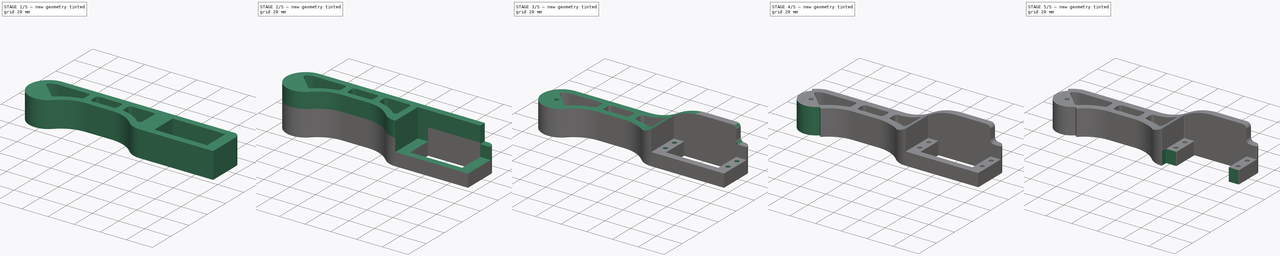
[diagram: build sequence overview — one tinted view per stage of 5, left to right]
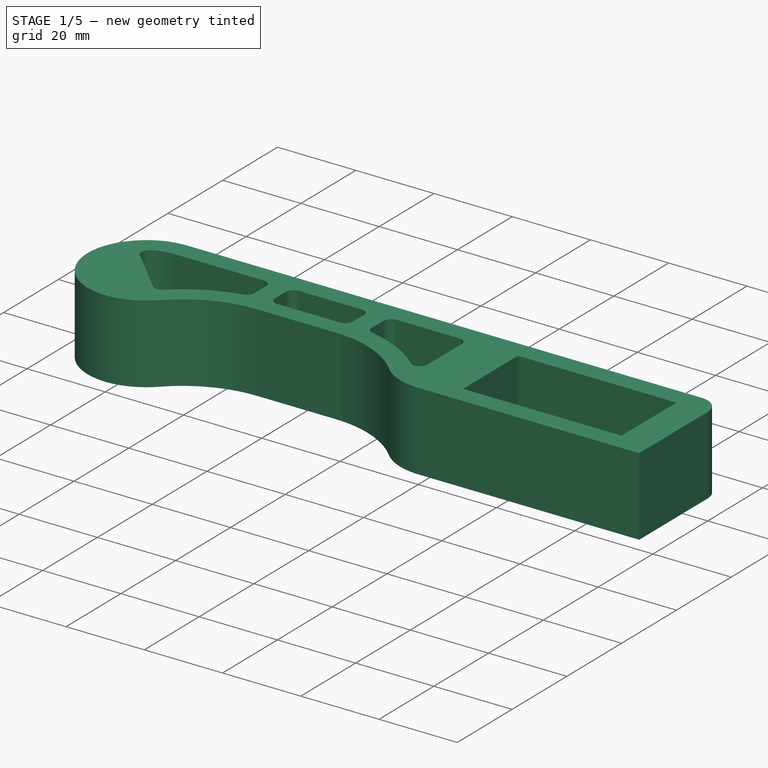
[diagram: stage 1 of 5 — iso view after this stage's code; geometry added in this stage tinted green]
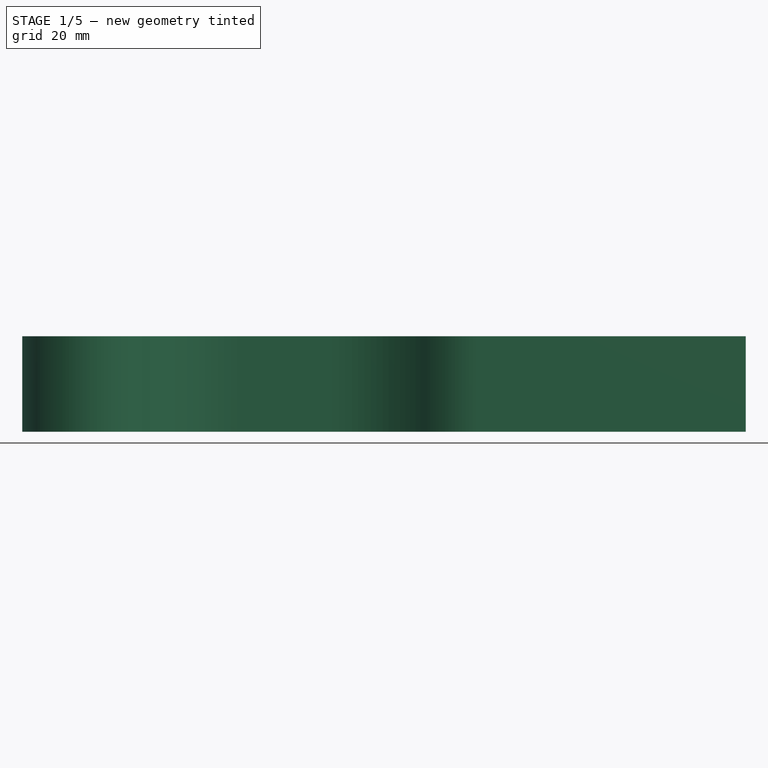
[diagram: stage 1 of 5 — front view after this stage's code; geometry added in this stage tinted green]
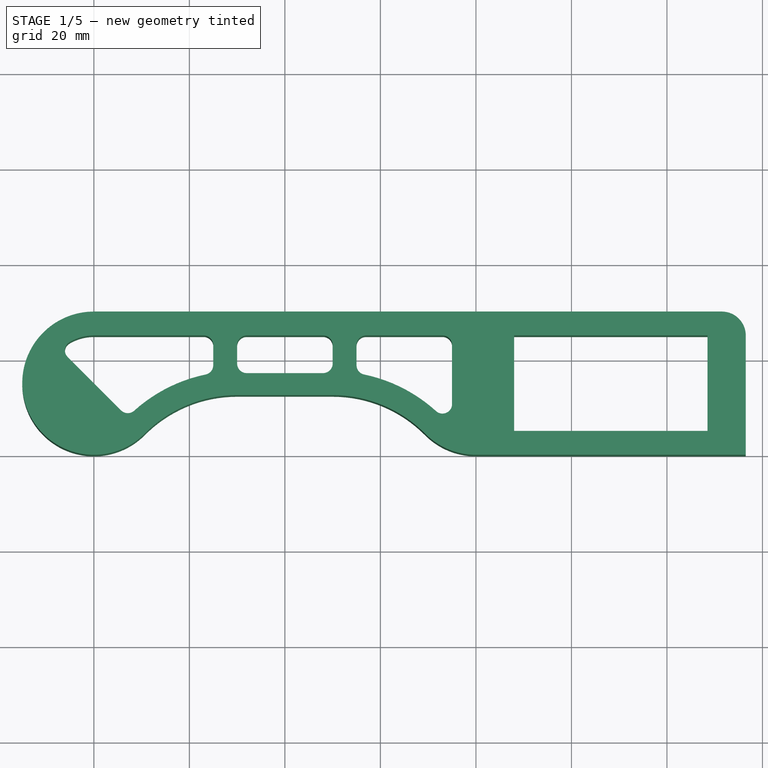
[diagram: stage 1 of 5 — top view after this stage's code; geometry added in this stage tinted green]
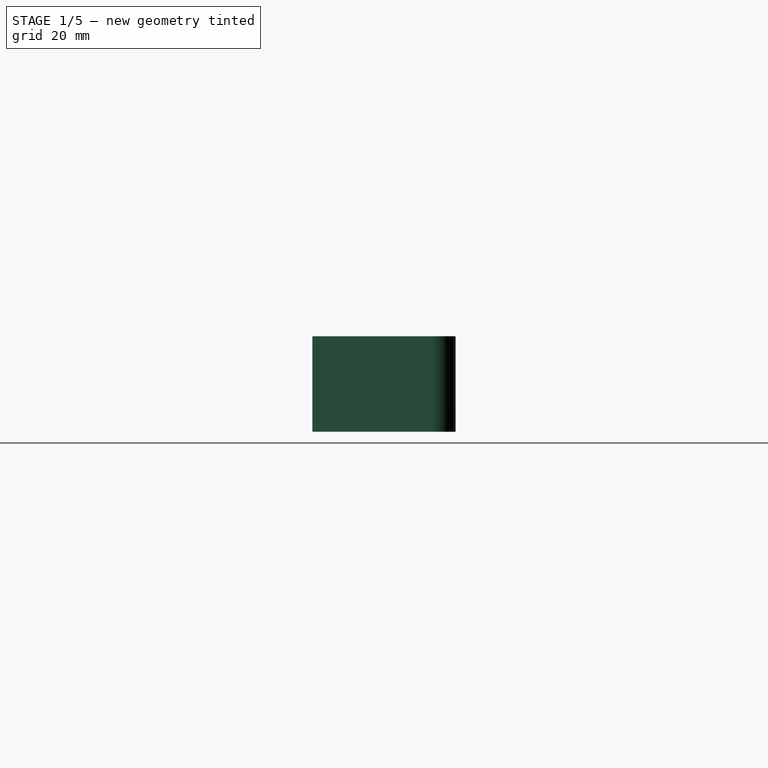
[diagram: stage 1 of 5 — right view after this stage's code; geometry added in this stage tinted green]
FCSTD DOCUMENT  (FreeCAD 0.18R4 (GitTag))
Label: Wrist
License: CreativeCommons Attribution-NonCommercial
LicenseURL: http://creativecommons.org/licenses/by-nc/4.0/
objects: Sketcher::SketchObject×10, PartDesign::Pocket×9, PartDesign::Fillet×3, PartDesign::Pad×2, PartDesign::Chamfer×1, PartDesign::Body×1
note: 37 computed .brp shape members not serialized (recipe doc carries the construction recipe); baked Part::Feature solids carry a one-line shape summary decoded from their .brp

FEATURE [Sketcher::SketchObject] Sketch116
  MapMode = 5
  Support = -> [XY_Plane009]
  sketch-geometry (9):
    g0: LineSegment StartX=-2.8e-15 StartY=0 StartZ=0 EndX=56.5 EndY=0 EndZ=0
    g1: LineSegment StartX=56.5 StartY=0 StartZ=0 EndX=56.5 EndY=25 EndZ=0
    g2: LineSegment StartX=51.5 StartY=30 StartZ=0 EndX=-80 EndY=30 EndZ=0
    g3: ArcOfCircle CenterX=-80 CenterY=15 CenterZ=0 NormalX=0 NormalY=0 NormalZ=1 AngleXU=0 Radius=15 StartAngle=1.5708 EndAngle=5.50197
    g4: ArcOfCircle CenterX=-50 CenterY=-14.75 CenterZ=0 NormalX=0 NormalY=0 NormalZ=1 AngleXU=0 Radius=27.25 StartAngle=1.5708 EndAngle=2.36038
    g5: ArcOfCircle CenterX=-30 CenterY=-14.75 CenterZ=0 NormalX=0 NormalY=0 NormalZ=1 AngleXU=0 Radius=27.25 StartAngle=0.781214 EndAngle=1.5708
    g6: ArcOfCircle CenterX=0 CenterY=15 CenterZ=0 NormalX=0 NormalY=0 NormalZ=1 AngleXU=0 Radius=15 StartAngle=3.92281 EndAngle=4.71239
    g7: LineSegment StartX=-50 StartY=12.5 StartZ=0 EndX=-30 EndY=12.5 EndZ=0
    g8: ArcOfCircle CenterX=51.5 CenterY=25 CenterZ=0 NormalX=0 NormalY=0 NormalZ=1 AngleXU=0 Radius=5 StartAngle=3e-16 EndAngle=1.5708
  constraints (23):
    c: Coincident(g0,g1)
    c: Horizontal(g0)
    c: Horizontal(g2)
    c: Vertical(g1)
    c: DistanceX(g0,g0) = 56.5
    c: Horizontal(g7)
    c: Radius(g3) = 15
    c: Tangent(g7,g5) = 1.5708
    c: Tangent(g4,g3) = 1.5708
    c: Tangent(g3,g2) = -1.5708
    c: Tangent(g7,g4) = 1.5708
    c: Tangent(g6,g5) = 1.5708
    c: Tangent(g6,g0) = -1.5708
    c: Equal(g3,g6)
    c: Equal(g4,g5)
    c: DistanceY(g0,g5) = 12.5
    c: DistanceX(g2,g0) = 80
    c: DistanceX(g4,g5) = 20
    c: Tangent(g3,g-1)
    c: Tangent(g2,g8) = -1.5708
    c: Tangent(g1,g8) = -1.5708
    c: Radius(g8) = 5
    c: Coincident(g0,g-1)
FEATURE [PartDesign::Pad] Pad021  label="Baseplate"
  Length = 20
  Length2 = 100
  Profile = -> Sketch116
  Type = 0
FEATURE [Sketcher::SketchObject] Sketch117
  ExternalGeometry = -> [Pad021]
  MapMode = 5
  Placement = pos=(0,0,20) rot=(0,0,1;0rad)
  Support = -> [Pad021]
  sketch-geometry (18):
    g0: LineSegment StartX=-87.0711 StartY=22.0711 StartZ=0 EndX=-72.9287 EndY=7.92875 EndZ=0
    g1: LineSegment StartX=-50 StartY=17.1099 StartZ=0 EndX=-30 EndY=17.1099 EndZ=0
    g2: LineSegment StartX=-30 StartY=17.1099 StartZ=0 EndX=-30 EndY=25 EndZ=0
    g3: LineSegment StartX=-30 StartY=25 StartZ=0 EndX=-50 EndY=25 EndZ=0
    g4: LineSegment StartX=-50 StartY=25 StartZ=0 EndX=-50 EndY=17.1099 EndZ=0
    g5: LineSegment StartX=-55 StartY=25 StartZ=0 EndX=-55 EndY=17.1099 EndZ=0
    g6: LineSegment StartX=-55 StartY=25 StartZ=0 EndX=-80 EndY=25 EndZ=0
    g7: LineSegment StartX=-25 StartY=25 StartZ=0 EndX=-25 EndY=17.1099 EndZ=0
    g8: ArcOfCircle CenterX=-80 CenterY=15 CenterZ=0 NormalX=0 NormalY=0 NormalZ=1 AngleXU=0 Radius=10 StartAngle=1.5708 EndAngle=2.35619
    g9: ArcOfCircle CenterX=-50 CenterY=-14.75 CenterZ=0 NormalX=0 NormalY=0 NormalZ=1 AngleXU=0 Radius=32.2499 StartAngle=1.72646 EndAngle=2.36168
    g10: ArcOfCircle CenterX=-30 CenterY=-14.75 CenterZ=0 NormalX=0 NormalY=0 NormalZ=1 AngleXU=0 Radius=32.2499 StartAngle=0.781214 EndAngle=1.41513
    g11: ArcOfCircle CenterX=0 CenterY=15 CenterZ=0 NormalX=0 NormalY=0 NormalZ=1 AngleXU=0 Radius=10.0001 StartAngle=3.92281 EndAngle=4.1888
    g12: LineSegment StartX=-25 StartY=25 StartZ=0 EndX=-5 EndY=25 EndZ=0
    g13: LineSegment StartX=-5 StartY=25 StartZ=0 EndX=-5 EndY=6.33958 EndZ=0
    g14: LineSegment StartX=8 StartY=25 StartZ=0 EndX=48.5 EndY=25 EndZ=0
    g15: LineSegment StartX=48.5 StartY=25 StartZ=0 EndX=48.5 EndY=5 EndZ=0
    g16: LineSegment StartX=48.5 StartY=5 StartZ=0 EndX=8 EndY=5 EndZ=0
    g17: LineSegment StartX=8 StartY=5 StartZ=0 EndX=8 EndY=25 EndZ=0
  constraints (52):
    c: Coincident(g1,g2)
    c: Coincident(g2,g3)
    c: Coincident(g3,g4)
    c: Coincident(g4,g1)
    c: Horizontal(g1)
    c: Horizontal(g3)
    c: Vertical(g2)
    c: Vertical(g4)
    c: Coincident(g6,g5)
    c: Horizontal(g6)
    c: Vertical(g7)
    c: Vertical(g5)
    c: Coincident(g8,g0)
    c: Coincident(g9,g5)
    c: Coincident(g10,g7)
    c: Coincident(g12,g7)
    c: Horizontal(g12)
    c: Tangent(g8,g6) = -1.5708
    c: Horizontal(g5,g3)
    c: Horizontal(g2,g7)
    c: Horizontal(g1,g7)
    c: Horizontal(g5,g1)
    c: Tangent(g11,g10) = 1.5708
    c: Angle(g0) = -0.785398
    c: Radius(g8) = 10
    c: Coincident(g8,g-3)
    c: PointOnObject(g8,g0)
    c: Coincident(g9,g0)
    c: DistanceX(g5,g3) = 5
    c: DistanceX(g2,g7) = 5
    c: DistanceX(g11,g-1) = 5
    c: Coincident(g13,g12)
    c: Coincident(g13,g11)
    c: Vertical(g13)
    c: Coincident(g-4,g9)
    c: Coincident(g10,g-5)
    c: Distance(g0,g-4) = 5
    c: Coincident(g11,g-6)
    c: Vertical(g-4,g1)
    c: Vertical(g-5,g1)
    c: Coincident(g14,g15)
    c: Coincident(g15,g16)
    c: Coincident(g16,g17)
    c: Coincident(g17,g14)
    c: Horizontal(g14)
    c: Horizontal(g16)
    c: Vertical(g15)
    c: Vertical(g17)
    c: DistanceX(g-1,g16) = 8
    c: DistanceY(g-1,g16) = 5
    c: DistanceX(g14,g14) = 40.5
    c: DistanceY(g15,g15) = 20
FEATURE [PartDesign::Pocket] Pocket087  label="Leg and Servo Pockets"
  BaseFeature = -> Pad021
  Length = 20
  Length2 = 100
  Profile = -> Sketch117
  Type = 0
FEATURE [PartDesign::Fillet] Fillet031  label="Smooth Leg Pockets"
  Base = -> Pocket087 [Edge76,Edge72,Edge73,Edge75,Edge69,Edge70,Edge71,Edge68,Edge77,Edge81,Edge79,Edge80]
  BaseFeature = -> Pocket087
  Radius = 2
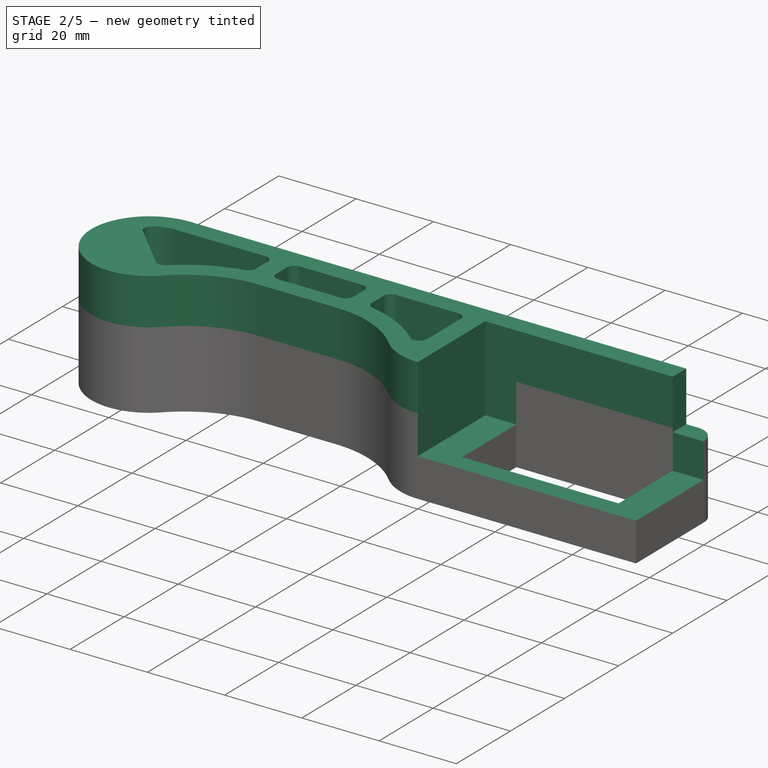
[diagram: stage 2 of 5 — iso view after this stage's code; geometry added in this stage tinted green]
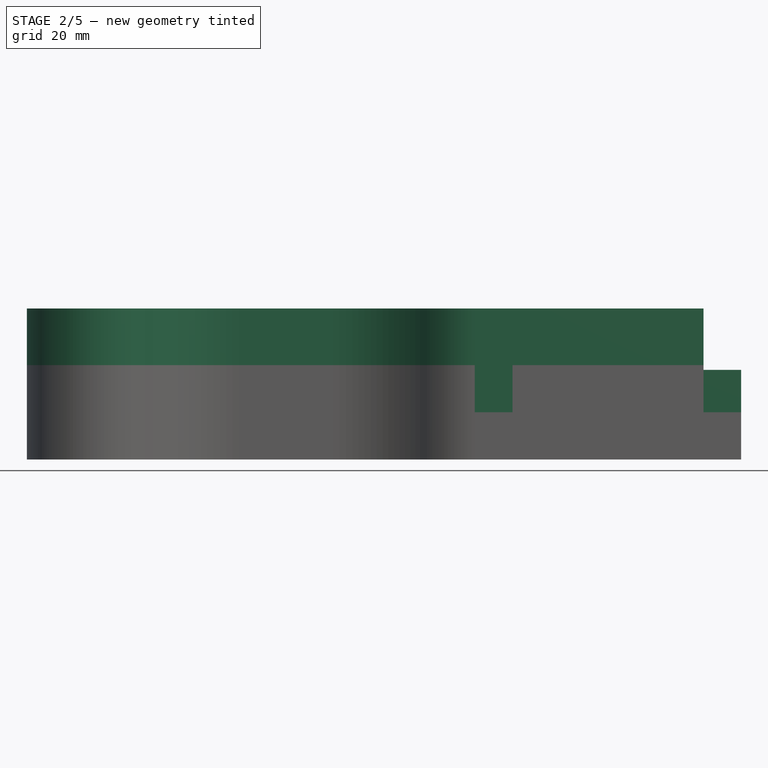
[diagram: stage 2 of 5 — front view after this stage's code; geometry added in this stage tinted green]
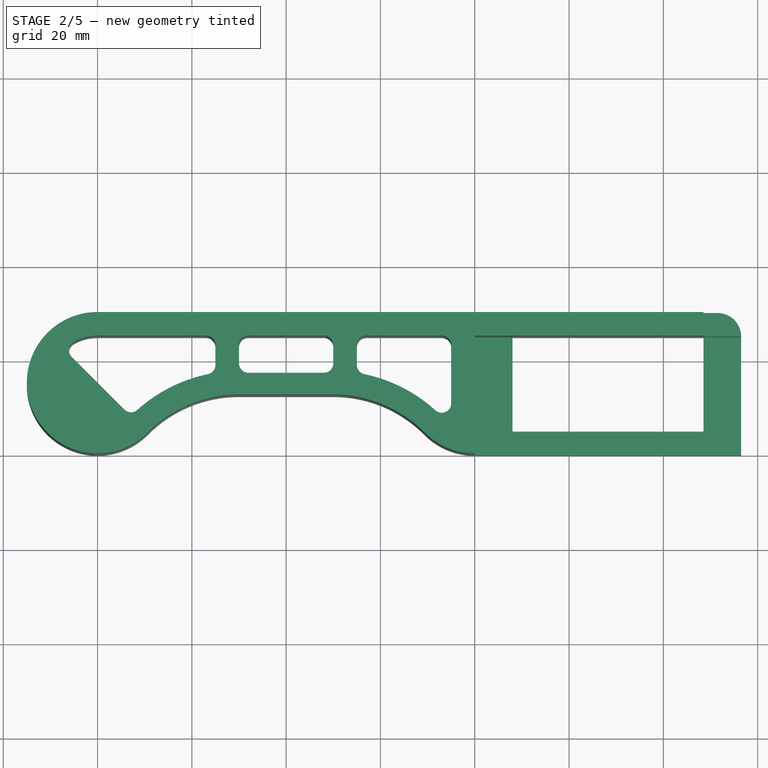
[diagram: stage 2 of 5 — top view after this stage's code; geometry added in this stage tinted green]
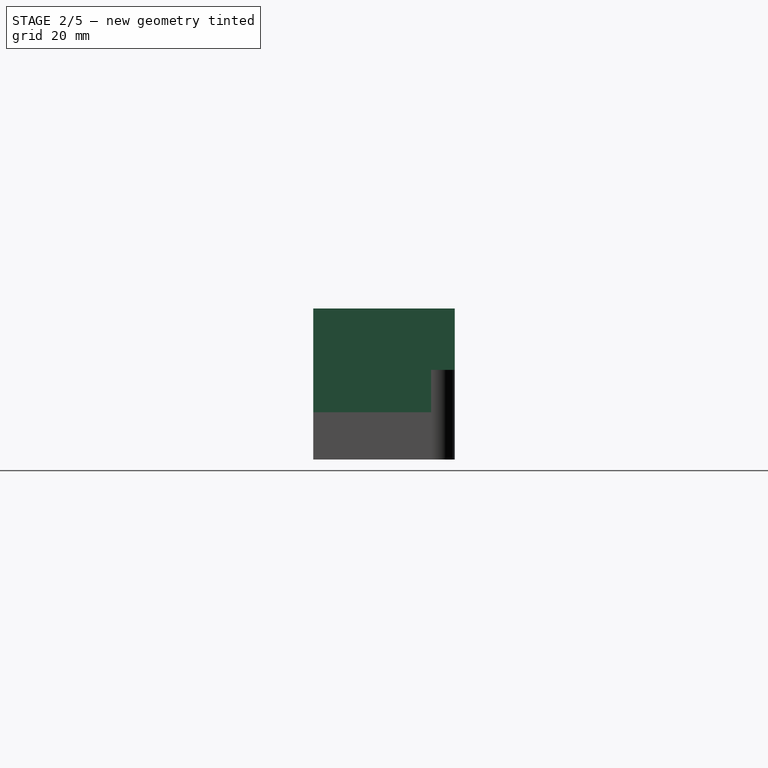
[diagram: stage 2 of 5 — right view after this stage's code; geometry added in this stage tinted green]
FEATURE [Sketcher::SketchObject] Sketch118
  MapMode = 5
  Placement = pos=(0,0,20) rot=(0,0,1;0rad)
  Support = -> [Fillet031]
  sketch-geometry (4):
    g0: LineSegment StartX=0 StartY=0 StartZ=0 EndX=56.5 EndY=0 EndZ=0
    g1: LineSegment StartX=56.5 StartY=0 StartZ=0 EndX=56.5 EndY=25 EndZ=0
    g2: LineSegment StartX=56.5 StartY=25 StartZ=0 EndX=0 EndY=25 EndZ=0
    g3: LineSegment StartX=0 StartY=25 StartZ=0 EndX=0 EndY=0 EndZ=0
  constraints (11):
    c: Coincident(g0,g1)
    c: Coincident(g1,g2)
    c: Coincident(g2,g3)
    c: Coincident(g3,g0)
    c: Horizontal(g0)
    c: Horizontal(g2)
    c: Vertical(g1)
    c: Vertical(g3)
    c: Coincident(g0,g-1)
    c: DistanceY(g3,g3) = 25
    c: DistanceX(g2,g2) = 56.5
FEATURE [PartDesign::Pocket] Pocket088  label="Counterpart Pocket"
  BaseFeature = -> Fillet031
  Length = 10
  Length2 = 100
  Profile = -> Sketch118
  Type = 0
FEATURE [PartDesign::Pad] Pad022  label="Extend Baseplate"
  BaseFeature = -> Pocket088
  Length = 12
  Length2 = 100
  Profile = -> Pocket088 [Face40]
  Type = 0
FEATURE [Sketcher::SketchObject] Sketch119
  MapMode = 5
  Placement = pos=(0,0,32) rot=(0,0,1;0rad)
  Support = -> [Pad022]
  sketch-geometry (4):
    g0: LineSegment StartX=48.5 StartY=25 StartZ=0 EndX=56.5 EndY=25 EndZ=0
    g1: LineSegment StartX=56.5 StartY=25 StartZ=0 EndX=56.5 EndY=30 EndZ=0
    g2: LineSegment StartX=56.5 StartY=30 StartZ=0 EndX=48.5 EndY=30 EndZ=0
    g3: LineSegment StartX=48.5 StartY=30 StartZ=0 EndX=48.5 EndY=25 EndZ=0
  constraints (12):
    c: Coincident(g0,g1)
    c: Coincident(g1,g2)
    c: Coincident(g2,g3)
    c: Coincident(g3,g0)
    c: Horizontal(g0)
    c: Horizontal(g2)
    c: Vertical(g1)
    c: Vertical(g3)
    c: DistanceY(g3,g3) = 5
    c: DistanceY(g-1,g0) = 25
    c: DistanceX(g2,g2) = 8
    c: DistanceX(g-1,g2) = 48.5
FEATURE [PartDesign::Pocket] Pocket089  label="Remove Extension Servocover"
  BaseFeature = -> Pad022
  Length = 13
  Length2 = 100
  Profile = -> Sketch119
  Type = 0
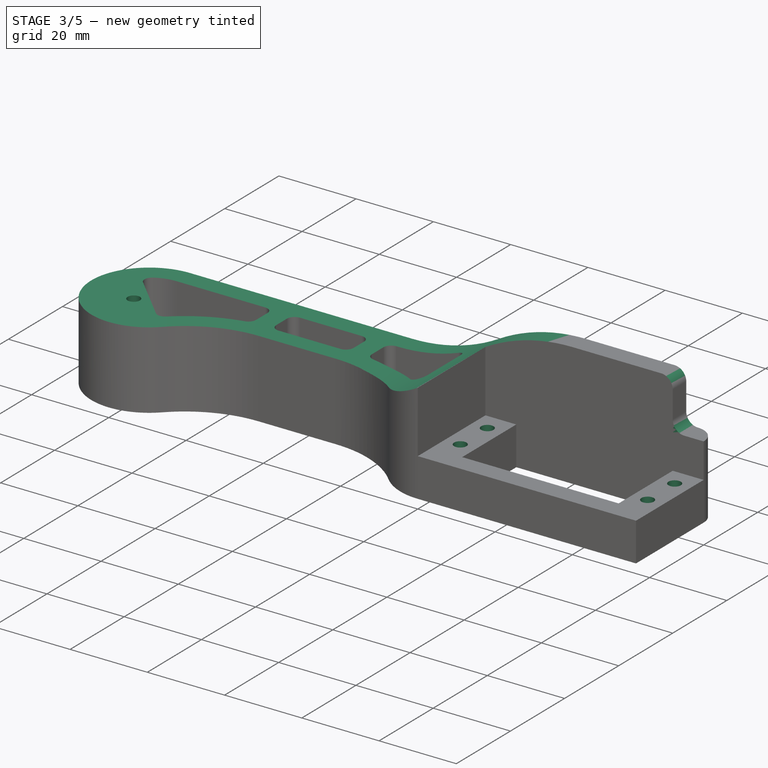
[diagram: stage 3 of 5 — iso view after this stage's code; geometry added in this stage tinted green]
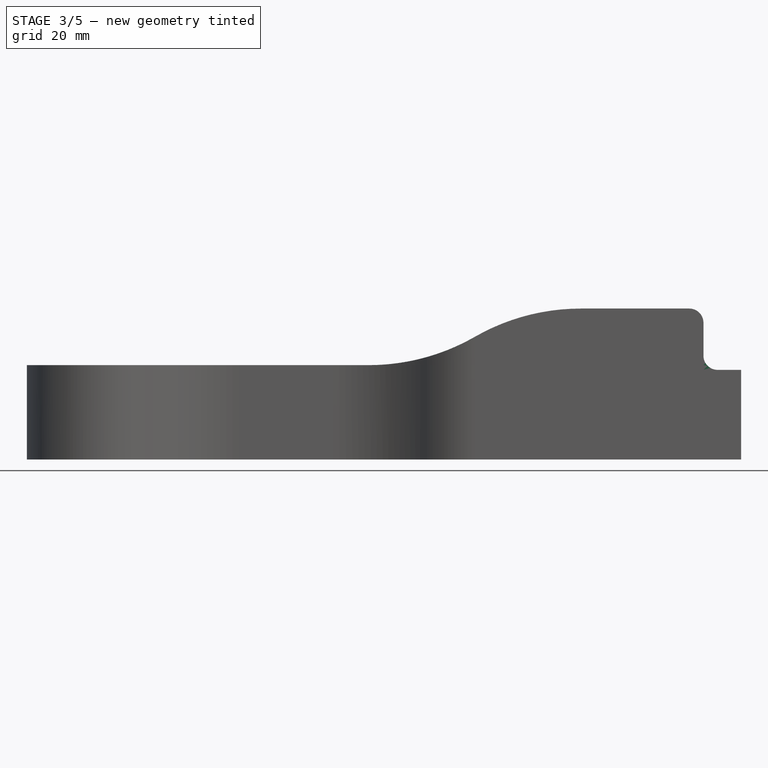
[diagram: stage 3 of 5 — front view after this stage's code; geometry added in this stage tinted green]
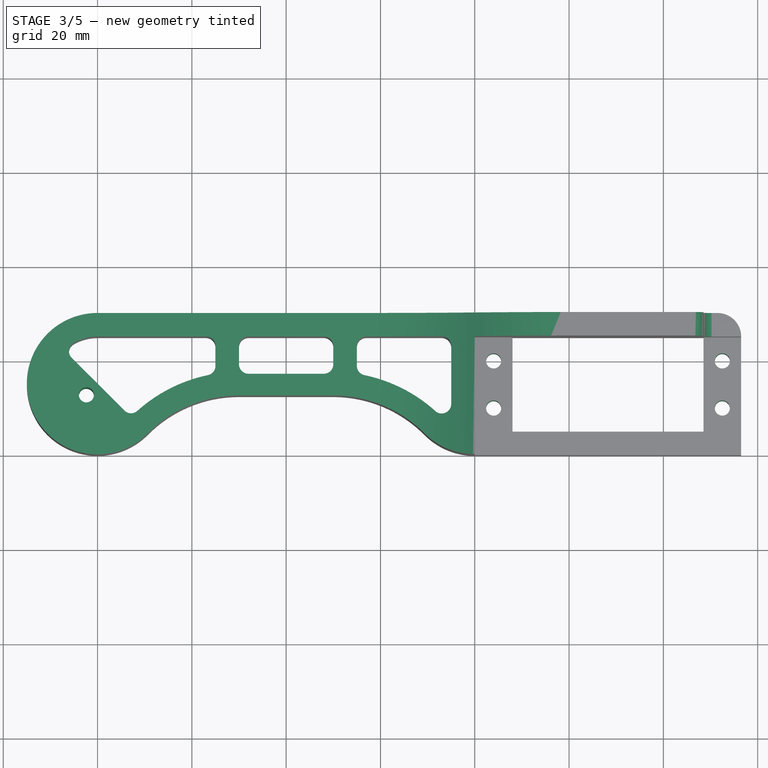
[diagram: stage 3 of 5 — top view after this stage's code; geometry added in this stage tinted green]
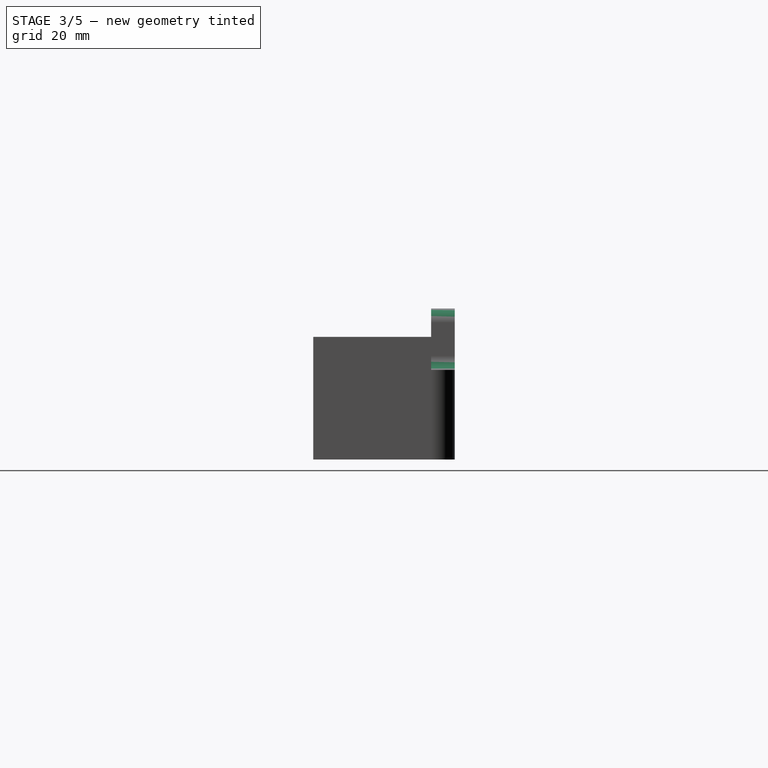
[diagram: stage 3 of 5 — right view after this stage's code; geometry added in this stage tinted green]
FEATURE [Sketcher::SketchObject] Sketch120
  MapMode = 5
  Placement = pos=(0,30,0) rot=(0,0.707107,0.707107;3.14159rad)
  Support = -> [Pocket089]
  sketch-geometry (7):
    g0: ArcOfCircle CenterX=22.5 CenterY=65.1875 CenterZ=0 NormalX=0 NormalY=0 NormalZ=1 AngleXU=0 Radius=45.1875 StartAngle=4.19118 EndAngle=4.71239
    g1: LineSegment StartX=-56.5 StartY=33 StartZ=0 EndX=95 EndY=33 EndZ=0
    g2: LineSegment StartX=95 StartY=33 StartZ=0 EndX=95 EndY=20 EndZ=0
    g3: LineSegment StartX=95 StartY=20 StartZ=0 EndX=22.5 EndY=20 EndZ=0
    g4: ArcOfCircle CenterX=-22.5 CenterY=-13.1875 CenterZ=0 NormalX=0 NormalY=0 NormalZ=1 AngleXU=0 Radius=45.1875 StartAngle=1.04959 EndAngle=1.5708
    g5: LineSegment StartX=-22.5 StartY=32 StartZ=0 EndX=-56.5 EndY=32 EndZ=0
    g6: LineSegment StartX=-56.5 StartY=32 StartZ=0 EndX=-56.5 EndY=33 EndZ=0
  constraints (21):
    c: Horizontal(g1)
    c: Coincident(g2,g1)
    c: Vertical(g2)
    c: Coincident(g3,g2)
    c: Horizontal(g3)
    c: Tangent(g3,g0) = 1.5708
    c: DistanceX(g0,g0) = 22.5
    c: DistanceY(g0,g1) = 7
    c: DistanceY(g2,g2) = 13
    c: PointOnObject(g0,g-2)
    c: DistanceY(g-1,g2) = 20
    c: Tangent(g4,g0) = 1.5708
    c: Horizontal(g5)
    c: Coincident(g6,g5)
    c: Coincident(g1,g6)
    c: Vertical(g6)
    c: Tangent(g5,g4) = -1.5708
    c: DistanceY(g6,g6) = 1
    c: DistanceX(g5,g0) = 56.5
    c: DistanceX(g0,g1) = 95
    c: DistanceX(g4,g0) = 22.5
FEATURE [PartDesign::Pocket] Pocket090  label="Swing Leg"
  BaseFeature = -> Pocket089
  Length = 35
  Length2 = 100
  Profile = -> Sketch120
  Type = 0
FEATURE [PartDesign::Fillet] Fillet032  label="Servocable "
  Base = -> Pocket090 [Edge144,Edge135]
  BaseFeature = -> Pocket090
  Radius = 3
FEATURE [Sketcher::SketchObject] Sketch121
  ExternalGeometry = -> [Fillet032]
  MapMode = 5
  Placement = pos=(0,4.4e-15,20) rot=(0,0,1;0rad)
  Support = -> [Fillet032]
  sketch-geometry (12):
    g0: Circle CenterX=-82.3678 CenterY=12.6322 CenterZ=0 NormalX=0 NormalY=0 NormalZ=1 AngleXU=0 Radius=1.6
    g1: LineSegment [constr] StartX=-80 StartY=15 StartZ=0 EndX=-83.2345 EndY=15.8667 EndZ=0
    g2: LineSegment [constr] StartX=-83.2345 StartY=15.8667 StartZ=0 EndX=-85.6024 EndY=13.4988 EndZ=0
    g3: LineSegment [constr] StartX=-85.6024 StartY=13.4988 StartZ=0 EndX=-84.7357 EndY=10.2643 EndZ=0
    g4: LineSegment [constr] StartX=-84.7357 StartY=10.2643 StartZ=0 EndX=-81.5012 EndY=9.39763 EndZ=0
    g5: LineSegment [constr] StartX=-81.5012 StartY=9.39763 StartZ=0 EndX=-79.1333 EndY=11.7655 EndZ=0
    g6: LineSegment [constr] StartX=-79.1333 StartY=11.7655 StartZ=0 EndX=-80 EndY=15 EndZ=0
    g7: Circle [constr] CenterX=-82.3678 CenterY=12.6322 CenterZ=0 NormalX=0 NormalY=0 NormalZ=1 AngleXU=0 Radius=3.34863
    g8: Circle CenterX=4 CenterY=20 CenterZ=0 NormalX=0 NormalY=0 NormalZ=1 AngleXU=0 Radius=1.6
    g9: Circle CenterX=52.5 CenterY=20 CenterZ=0 NormalX=0 NormalY=0 NormalZ=1 AngleXU=0 Radius=1.6
    g10: Circle CenterX=52.5 CenterY=10 CenterZ=0 NormalX=0 NormalY=0 NormalZ=1 AngleXU=0 Radius=1.6
    g11: Circle CenterX=4 CenterY=10 CenterZ=0 NormalX=0 NormalY=0 NormalZ=1 AngleXU=0 Radius=1.6
  constraints (30):
    c: Radius(g0) = 1.6
    c: Coincident(g1,g2)
    c: Coincident(g2,g3)
    c: Coincident(g3,g4)
    c: Coincident(g4,g5)
    c: Coincident(g5,g6)
    c: Coincident(g6,g1)
    c: Equal(g1, g2-g6) x5
    c: PointOnObject(g1,g7)
    c: PointOnObject(g2,g7)
    c: PointOnObject(g3,g7)
    c: PointOnObject(g4,g7)
    c: PointOnObject(g5,g7)
    c: PointOnObject(g6,g7)
    c: Coincident(g7,g0)
    c: Distance(g4,g2) = 5.8
    c: Coincident(g1,g-3)
    c: Angle(g5) = 0.785398
    c: Horizontal(g8,g9)
    c: Horizontal(g11,g10)
    c: Vertical(g10,g9)
    c: Vertical(g8,g11)
    c: Equal(g11,g8)
    c: Equal(g8,g9)
    c: Equal(g9,g10)
    c: Equal(g8,g0)
    c: DistanceX(g11,g10) = 48.5
    c: DistanceY(g11,g8) = 10
    c: DistanceY(g-1,g11) = 10
    c: DistanceX(g-1,g11) = 4
FEATURE [PartDesign::Pocket] Pocket091  label="Screwhole"
  BaseFeature = -> Fillet032
  Length = 20
  Length2 = 100
  Profile = -> Sketch121
  Type = 0
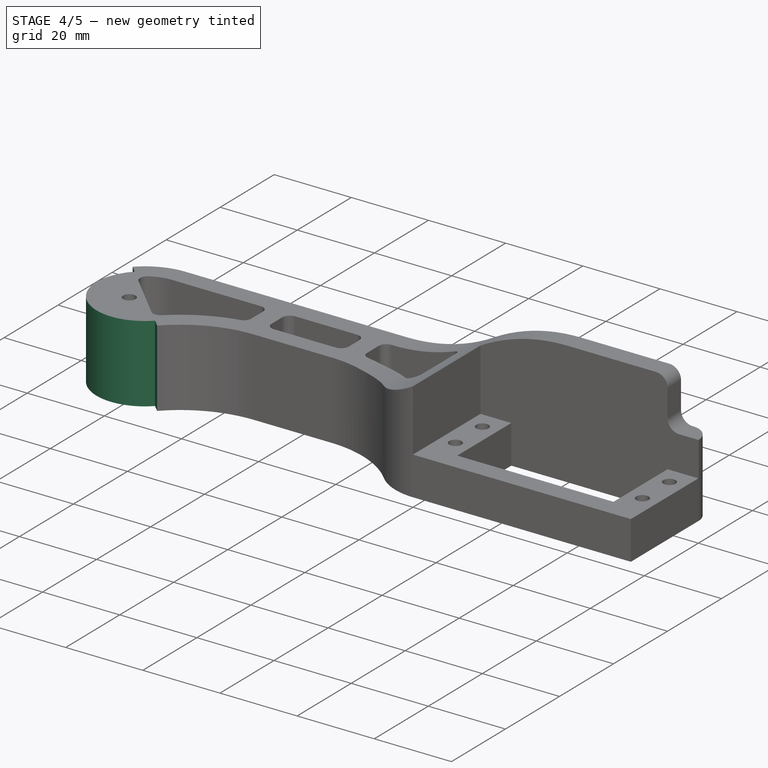
[diagram: stage 4 of 5 — iso view after this stage's code; geometry added in this stage tinted green]
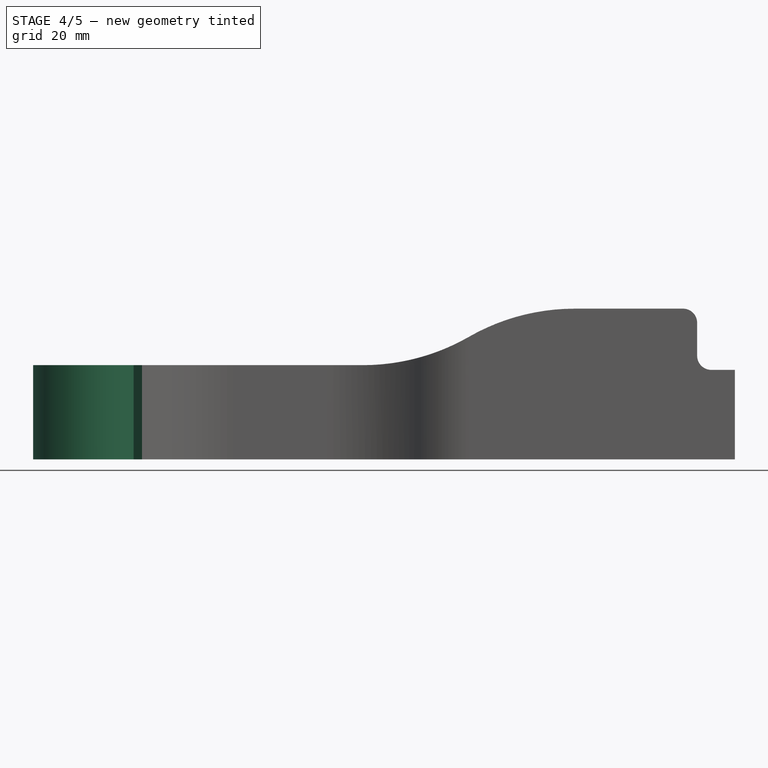
[diagram: stage 4 of 5 — front view after this stage's code; geometry added in this stage tinted green]
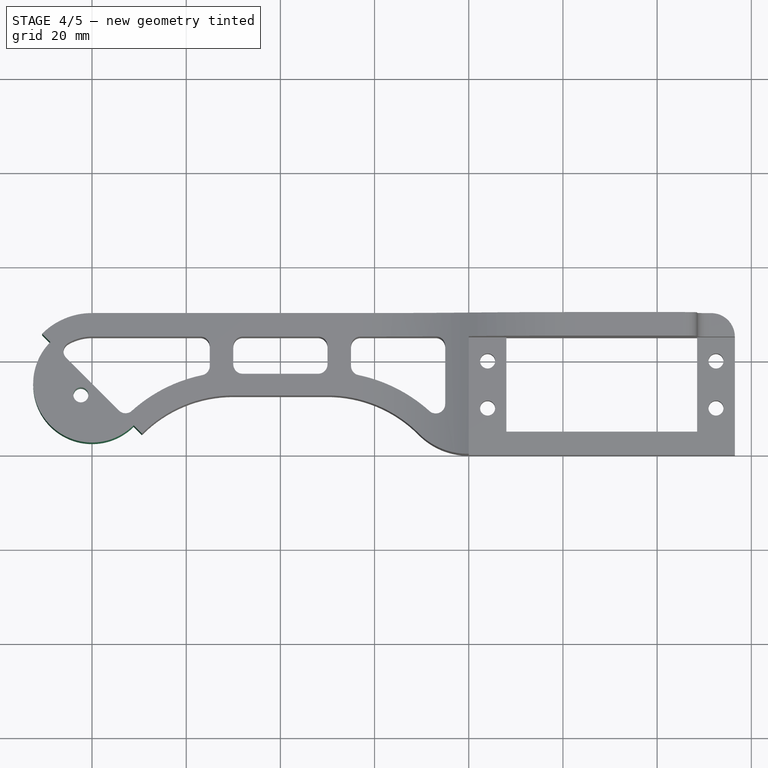
[diagram: stage 4 of 5 — top view after this stage's code; geometry added in this stage tinted green]
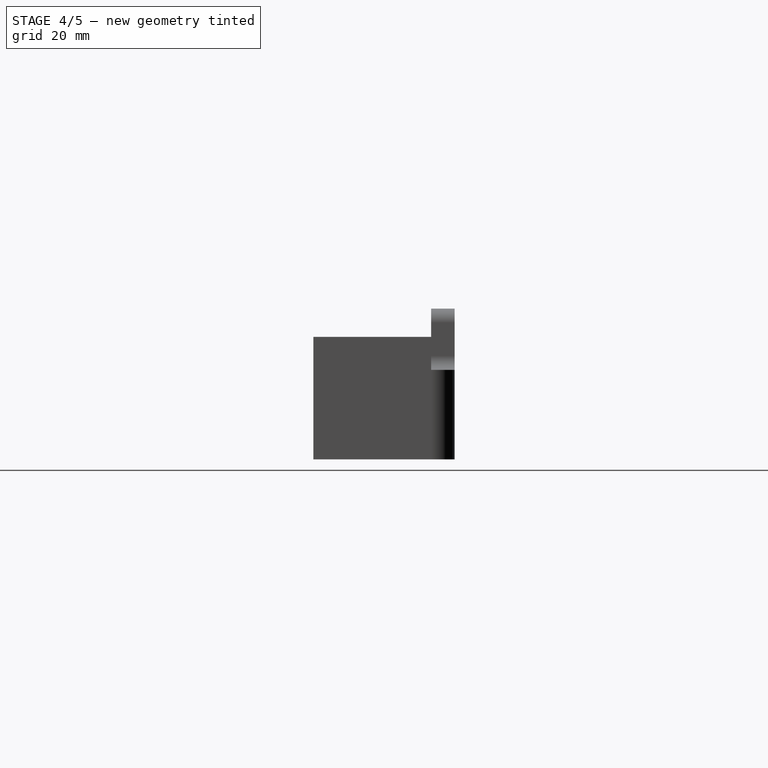
[diagram: stage 4 of 5 — right view after this stage's code; geometry added in this stage tinted green]
FEATURE [Sketcher::SketchObject] Sketch122
  MapMode = 5
  Placement = pos=(0,4.4e-15,20) rot=(0,0,1;0rad)
  Support = -> [Pocket091]
  sketch-geometry (5):
    g0: ArcOfCircle CenterX=-80 CenterY=15 CenterZ=0 NormalX=0 NormalY=0 NormalZ=1 AngleXU=0 Radius=12.5 StartAngle=2.35619 EndAngle=5.49779
    g1: LineSegment [constr] StartX=-88.8388 StartY=23.8388 StartZ=0 EndX=-71.1612 EndY=6.16117 EndZ=0
    g2: LineSegment StartX=-88.8388 StartY=23.8388 StartZ=0 EndX=-92.3744 EndY=27.3744 EndZ=0
    g3: LineSegment StartX=-71.1612 StartY=6.16117 StartZ=0 EndX=-67.6256 EndY=2.62563 EndZ=0
    g4: ArcOfCircle CenterX=-80 CenterY=15 CenterZ=0 NormalX=0 NormalY=0 NormalZ=1 AngleXU=0 Radius=17.5 StartAngle=2.35619 EndAngle=5.49779
  constraints (15):
    c: Radius(g0) = 12.5
    c: DistanceX(g0,g-1) = 80
    c: DistanceY(g-1,g0) = 15
    c: Coincident(g1,g0)
    c: Coincident(g1,g0)
    c: Angle(g1) = -0.785398
    c: PointOnObject(g0,g1)
    c: Coincident(g2,g0)
    c: Coincident(g3,g0)
    c: Coincident(g4,g0)
    c: Coincident(g4,g2)
    c: Coincident(g4,g3)
    c: Tangent(g2,g1)
    c: Tangent(g1,g3)
    c: Radius(g4) = 17.5
FEATURE [PartDesign::Pocket] Pocket092  label="Rubberfoot Pocket"
  BaseFeature = -> Pocket091
  Length = 20
  Length2 = 100
  Profile = -> Sketch122
  Type = 0
FEATURE [Sketcher::SketchObject] Sketch
  AttachmentOffset = pos=(0,0,-3) rot=(0,0,1;0rad)
  ExternalGeometry = -> [Pocket092]
  MapMode = 5
  Placement = pos=(0,3.7e-15,17) rot=(0,0,1;0rad)
  Support = -> [Pocket092]
  sketch-geometry (10):
    g0: LineSegment [constr] StartX=-80 StartY=15 StartZ=0 EndX=-83.2345 EndY=15.8667 EndZ=0
    g1: LineSegment StartX=-83.2345 StartY=15.8667 StartZ=0 EndX=-85.6024 EndY=13.4988 EndZ=0
    g2: LineSegment StartX=-85.6024 StartY=13.4988 StartZ=0 EndX=-84.7357 EndY=10.2643 EndZ=0
    g3: LineSegment StartX=-84.7357 StartY=10.2643 StartZ=0 EndX=-81.5012 EndY=9.39763 EndZ=0
    g4: LineSegment StartX=-81.5012 StartY=9.39763 StartZ=0 EndX=-79.1333 EndY=11.7655 EndZ=0
    g5: LineSegment [constr] StartX=-79.1333 StartY=11.7655 StartZ=0 EndX=-80 EndY=15 EndZ=0
    g6: Circle [constr] CenterX=-82.3678 CenterY=12.6322 CenterZ=0 NormalX=0 NormalY=0 NormalZ=1 AngleXU=0 Radius=3.34863
    g7: LineSegment StartX=-79.1333 StartY=11.7655 StartZ=0 EndX=-77.7191 EndY=13.1797 EndZ=0
    g8: LineSegment StartX=-77.7191 StartY=13.1797 StartZ=0 EndX=-81.8203 EndY=17.2809 EndZ=0
    g9: LineSegment StartX=-81.8203 StartY=17.2809 StartZ=0 EndX=-83.2345 EndY=15.8667 EndZ=0
  constraints (23):
    c: Coincident(g0,g1)
    c: Coincident(g1,g2)
    c: Coincident(g2,g3)
    c: Coincident(g3,g4)
    c: Coincident(g4,g5)
    c: Coincident(g5,g0)
    c: Equal(g0, g1-g5) x5
    c: PointOnObject(g0,g6)
    c: PointOnObject(g1,g6)
    c: PointOnObject(g2,g6)
    c: PointOnObject(g3,g6)
    c: PointOnObject(g4,g6)
    c: PointOnObject(g5,g6)
    c: Coincident(g6,g-3)
    c: Angle(g4) = 0.785398
    c: Distance(g1,g3) = 5.8
    c: Coincident(g8,g7)
    c: Coincident(g9,g8)
    c: Coincident(g9,g0)
    c: Tangent(g7,g4) = -1.5708
    c: Tangent(g9,g1)
    c: Perpendicular(g8,g7)
    c: Distance(g7) = 2
FEATURE [Sketcher::SketchObject] Sketch123
  AttachmentOffset = pos=(0,0,-17) rot=(0,0,1;0rad)
  ExternalGeometry = -> [Pocket092]
  MapMode = 5
  Placement = pos=(0,7e-16,3) rot=(0,0,1;0rad)
  Support = -> [Pocket092]
  sketch-geometry (10):
    g0: LineSegment [constr] StartX=-80 StartY=15 StartZ=0 EndX=-83.2345 EndY=15.8667 EndZ=0
    g1: LineSegment StartX=-83.2345 StartY=15.8667 StartZ=0 EndX=-85.6024 EndY=13.4988 EndZ=0
    g2: LineSegment StartX=-85.6024 StartY=13.4988 StartZ=0 EndX=-84.7357 EndY=10.2643 EndZ=0
    g3: LineSegment StartX=-84.7357 StartY=10.2643 StartZ=0 EndX=-81.5012 EndY=9.39763 EndZ=0
    g4: LineSegment StartX=-81.5012 StartY=9.39763 StartZ=0 EndX=-79.1333 EndY=11.7655 EndZ=0
    g5: LineSegment [constr] StartX=-79.1333 StartY=11.7655 StartZ=0 EndX=-80 EndY=15 EndZ=0
    g6: Circle [constr] CenterX=-82.3678 CenterY=12.6322 CenterZ=0 NormalX=0 NormalY=0 NormalZ=1 AngleXU=0 Radius=3.34863
    g7: LineSegment StartX=-79.1333 StartY=11.7655 StartZ=0 EndX=-77.7191 EndY=13.1797 EndZ=0
    g8: LineSegment StartX=-77.7191 StartY=13.1797 StartZ=0 EndX=-81.8203 EndY=17.2809 EndZ=0
    g9: LineSegment StartX=-81.8203 StartY=17.2809 StartZ=0 EndX=-83.2345 EndY=15.8667 EndZ=0
  constraints (23):
    c: Coincident(g0,g1)
    c: Coincident(g1,g2)
    c: Coincident(g2,g3)
    c: Coincident(g3,g4)
    c: Coincident(g4,g5)
    c: Coincident(g5,g0)
    c: Equal(g0, g1-g5) x5
    c: PointOnObject(g0,g6)
    c: PointOnObject(g1,g6)
    c: PointOnObject(g2,g6)
    c: PointOnObject(g3,g6)
    c: PointOnObject(g4,g6)
    c: PointOnObject(g5,g6)
    c: Coincident(g6,g-3)
    c: Angle(g4) = 0.785398
    c: Distance(g1,g3) = 5.8
    c: Coincident(g8,g7)
    c: Coincident(g9,g8)
    c: Coincident(g9,g0)
    c: Tangent(g7,g4) = -1.5708
    c: Tangent(g9,g1)
    c: Perpendicular(g8,g7)
    c: Distance(g7) = 2
FEATURE [PartDesign::Pocket] Pocket  label="Nuthole #1"
  BaseFeature = -> Pocket092
  Length = 3
  Length2 = 100
  Profile = -> Sketch
  Type = 0
FEATURE [PartDesign::Pocket] Pocket093  label="Nuthole #2"
  BaseFeature = -> Pocket
  Length = 3
  Length2 = 100
  Profile = -> Sketch123
  Reversed = true
  Type = 0
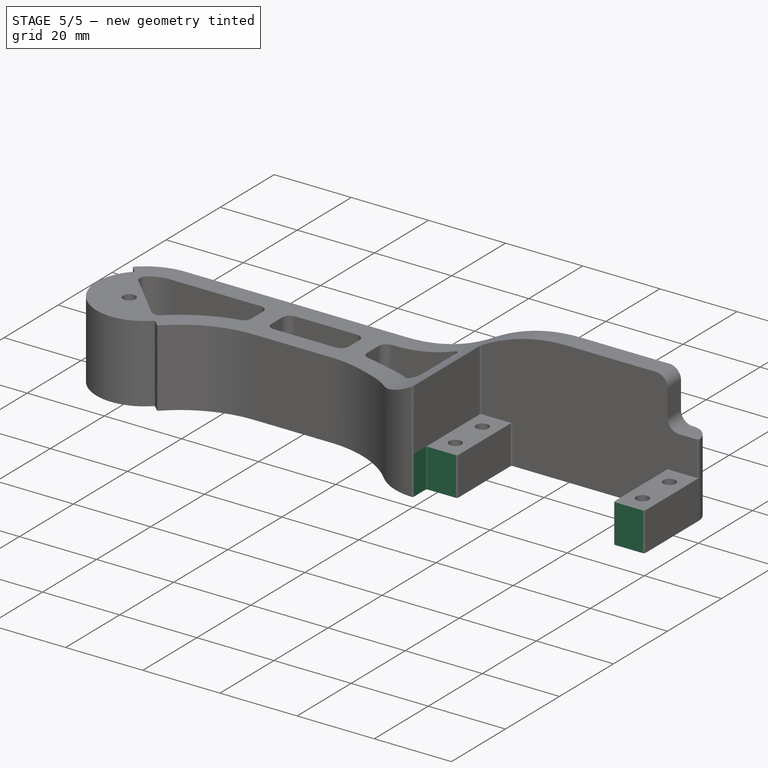
[diagram: stage 5 of 5 — iso view after this stage's code; geometry added in this stage tinted green]
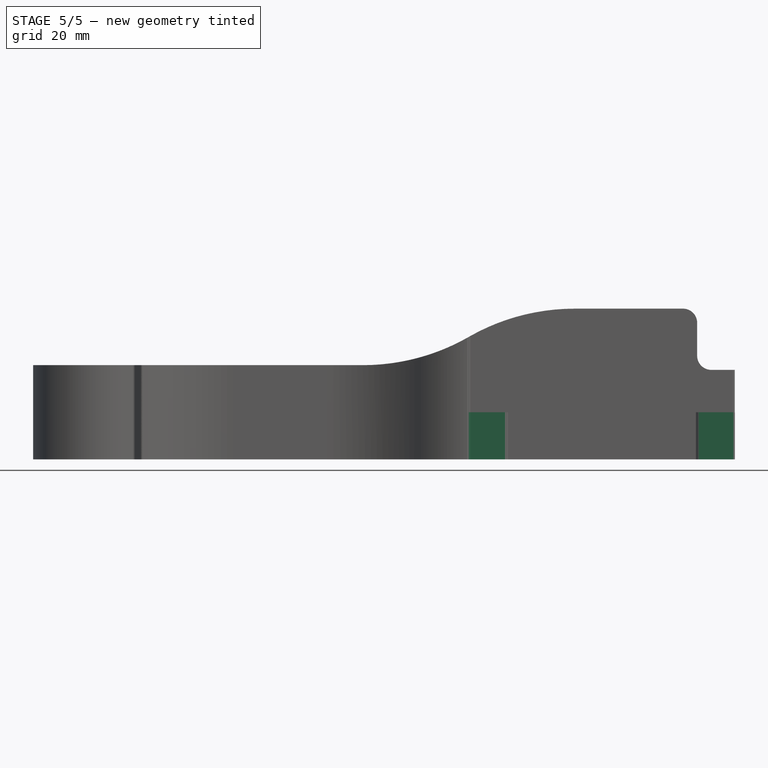
[diagram: stage 5 of 5 — front view after this stage's code; geometry added in this stage tinted green]
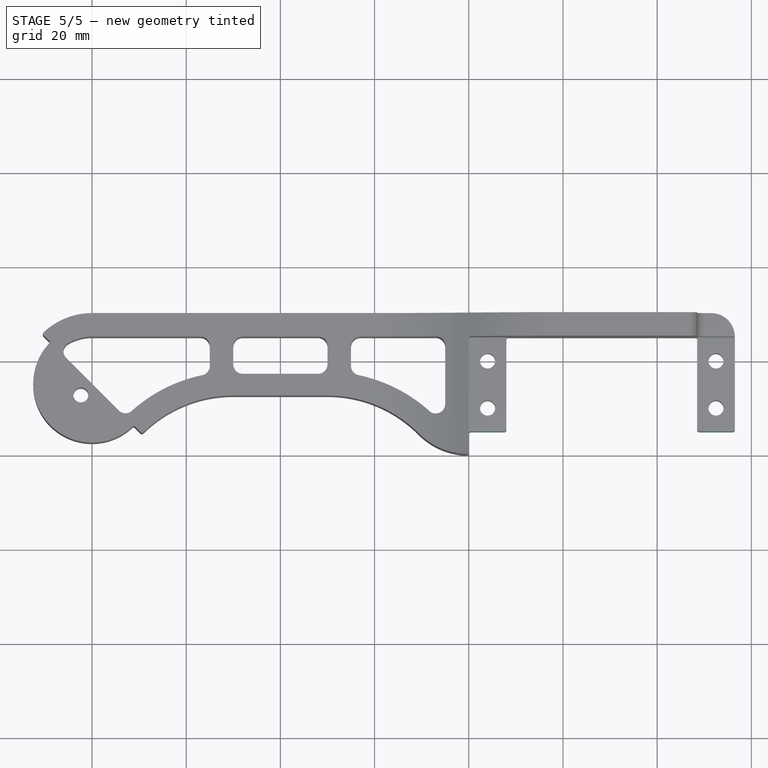
[diagram: stage 5 of 5 — top view after this stage's code; geometry added in this stage tinted green]
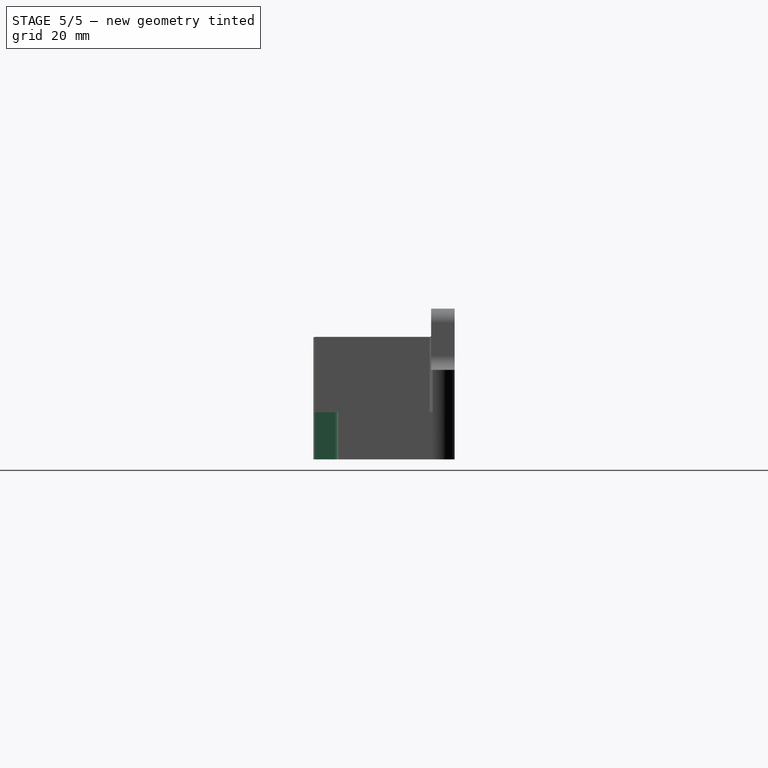
[diagram: stage 5 of 5 — right view after this stage's code; geometry added in this stage tinted green]
FEATURE [PartDesign::Chamfer] Chamfer  label="Smooth Nutholes"
  Base = -> Pocket093 [Edge206,Edge207,Edge141,Edge209,Edge208,Edge225,Edge222,Edge223,Edge224,Edge221]
  BaseFeature = -> Pocket093
  Size = 0.625
FEATURE [Sketcher::SketchObject] Sketch124
  MapMode = 5
  Placement = pos=(0,0,10) rot=(0,0,1;0rad)
  Support = -> [Chamfer]
  sketch-geometry (4):
    g0: LineSegment StartX=0 StartY=0 StartZ=0 EndX=56.5 EndY=0 EndZ=0
    g1: LineSegment StartX=56.5 StartY=0 StartZ=0 EndX=56.5 EndY=5 EndZ=0
    g2: LineSegment StartX=56.5 StartY=5 StartZ=0 EndX=0 EndY=5 EndZ=0
    g3: LineSegment StartX=0 StartY=5 StartZ=0 EndX=0 EndY=0 EndZ=0
  constraints (11):
    c: Coincident(g0,g1)
    c: Coincident(g1,g2)
    c: Coincident(g2,g3)
    c: Coincident(g3,g0)
    c: Horizontal(g0)
    c: Horizontal(g2)
    c: Vertical(g1)
    c: Vertical(g3)
    c: Coincident(g0,g-1)
    c: DistanceY(g1,g1) = 5
    c: DistanceX(g2,g2) = 56.5
FEATURE [PartDesign::Pocket] Pocket094  label="Shorten Baseplate"
  BaseFeature = -> Chamfer
  Length = 10
  Length2 = 100
  Profile = -> Sketch124
  Type = 0
FEATURE [PartDesign::Fillet] Fillet  label="Smooth Corners"
  Base = -> Pocket094 [Edge232,Edge234,Edge240,Edge242,Edge193,Edge83,Edge85,Edge86,Edge88,Edge170,Edge236,Edge238,Edge258]
  BaseFeature = -> Pocket094
  Radius = 0.4
FEATURE [PartDesign::Body] Body007  label="Wrist"
  Group = -> [Sketch116,Pad021,Sketch117,Pocket087,Fillet031,Sketch118,Pocket088,Pad022,Sketch119,Pocket089,Sketch120,Pocket090,Fillet032,Sketch121,Pocket091,Sketch122,Pocket092,Sketch,Sketch123,Pocket,Pocket093,Chamfer,Sketch124,Pocket094,Fillet]
  Origin = -> Origin009
  Tip = -> Fillet
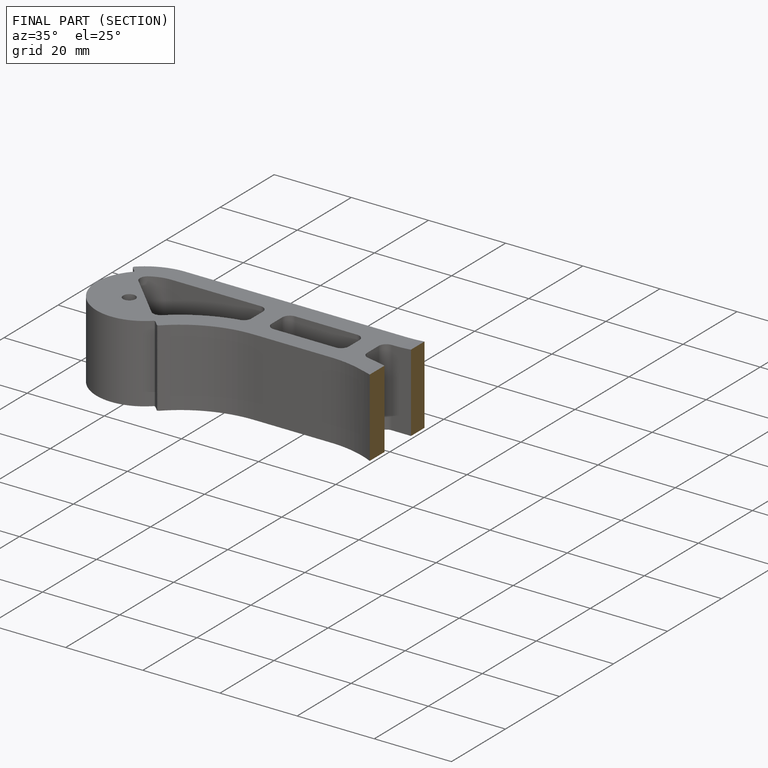
[diagram: finished part — half-section view (interior)]
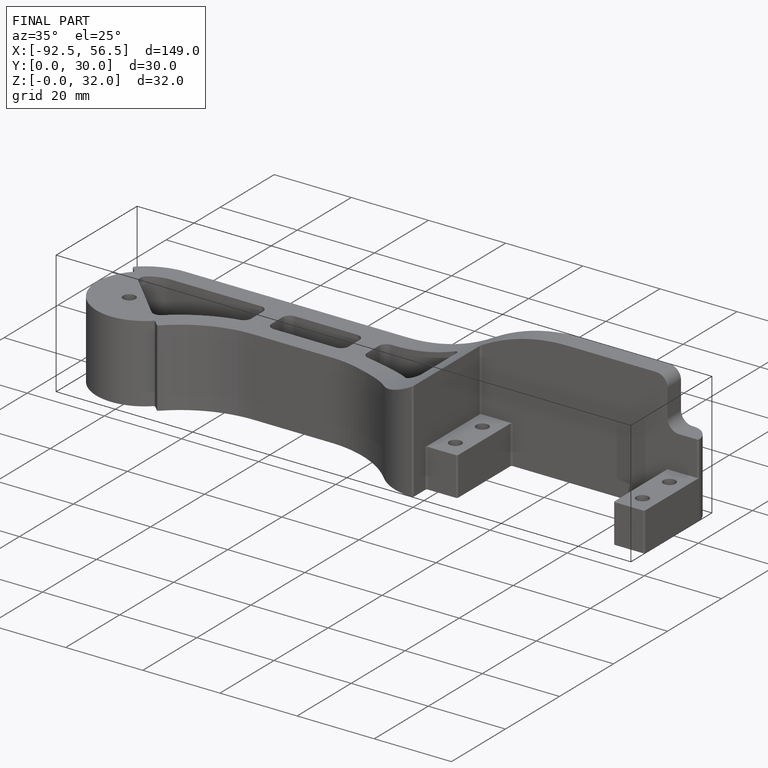
[diagram: finished part — iso view with bounding-box wireframe]
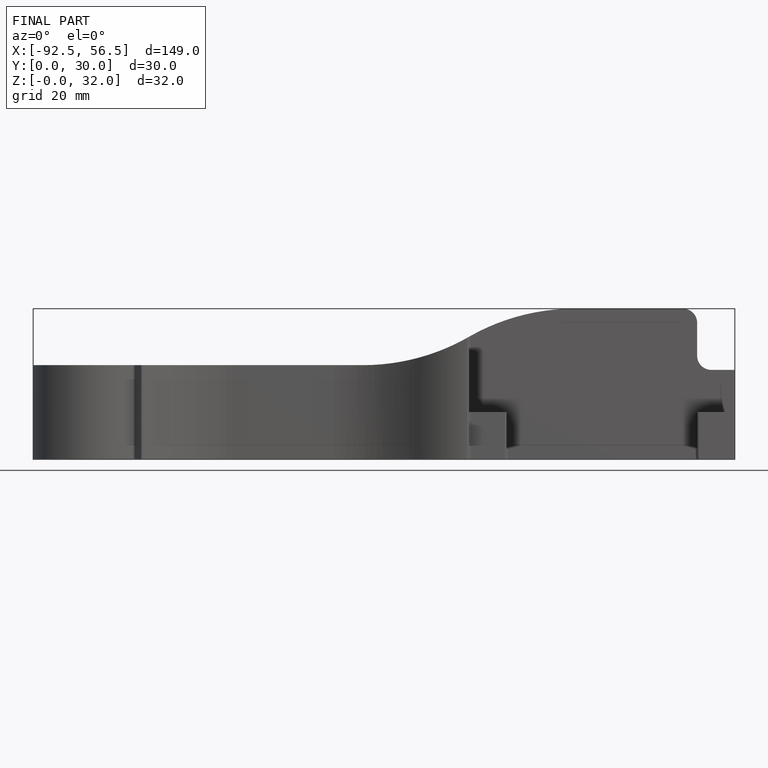
[diagram: finished part — front view with bounding-box wireframe]
